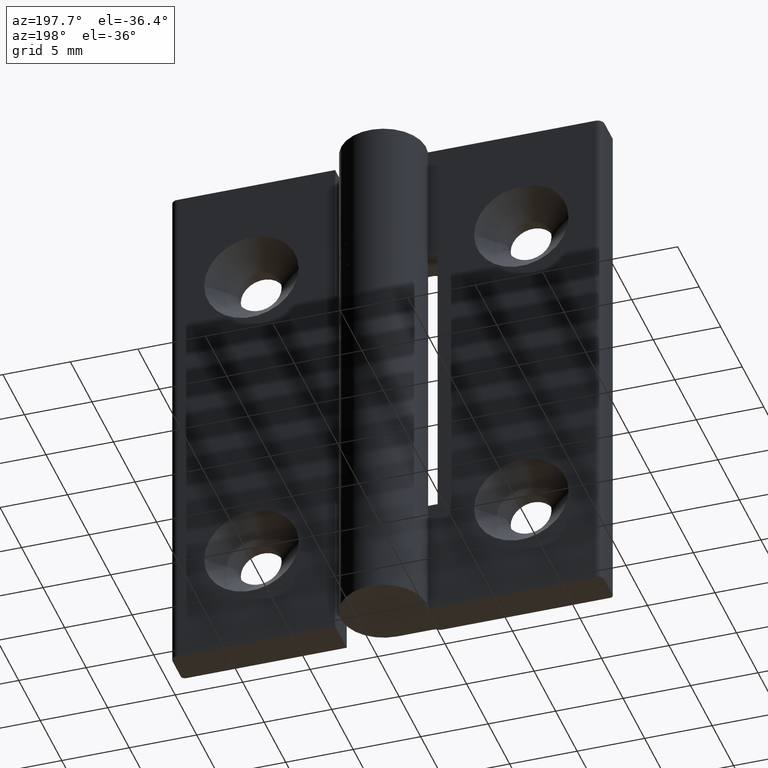
[diagram: clean part render]
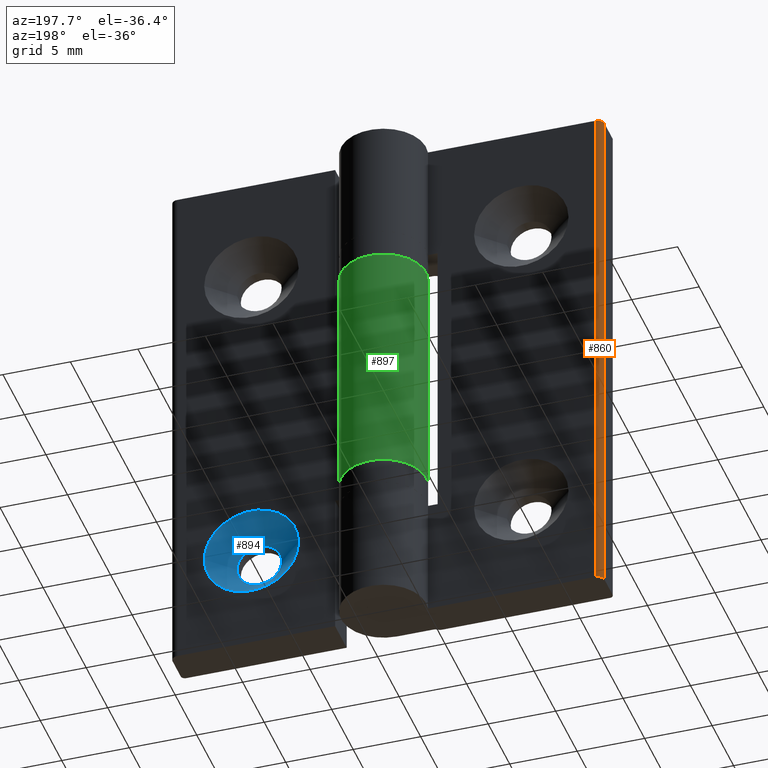
[diagram: same view with three faces highlighted in distinct colors, each labeled with its STEP entity id]
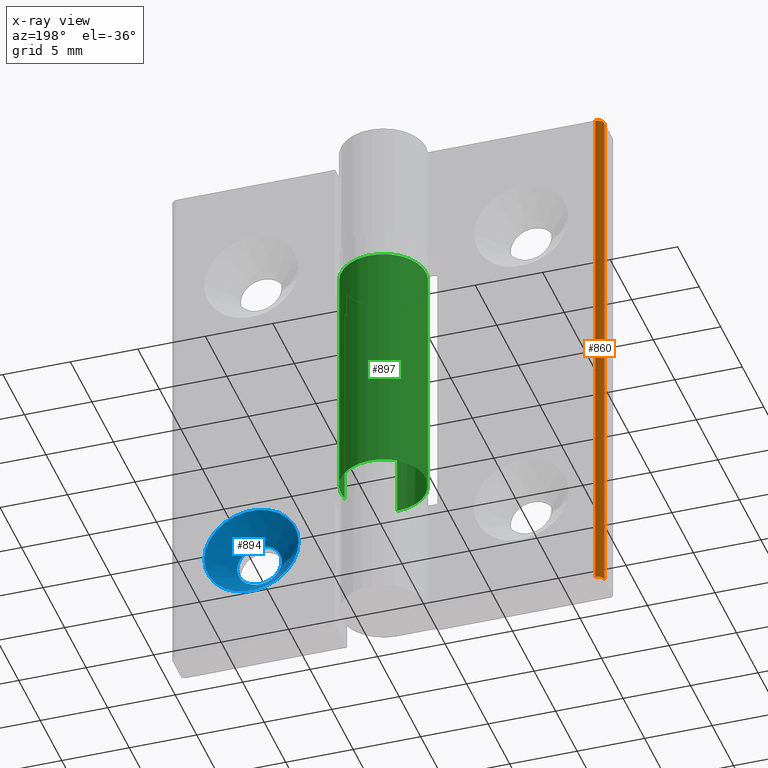
[diagram: x-ray of the same camera — body ghosted, the three highlighted faces saturated]
A machine part, auxiliary view with three faces highlighted in distinct colors.
The next image is the same camera in x-ray (body ghosted, the three faces saturated) — at least one of them is partly hidden behind the body in this view.
Their STEP definitions:

[orange] entity #860 — the highlighted cylindrical surface (edge-blend (fillet) strip) has radius 0.5 mm, axis along (0, 0, -1).
#57=CYLINDRICAL_SURFACE('',#934,0.5);
#121=CIRCLE('',#932,0.5);
#122=CIRCLE('',#935,0.5);
#167=FACE_OUTER_BOUND('',#224,.T.);
#224=EDGE_LOOP('',(#671,#672,#673,#674));
#298=LINE('',#1340,#359);
#312=LINE('',#1388,#373);
#359=VECTOR('',#1051,40.);
#373=VECTOR('',#1103,40.);
#425=VERTEX_POINT('',#1337);
#426=VERTEX_POINT('',#1339);
#440=VERTEX_POINT('',#1381);
#441=VERTEX_POINT('',#1386);
#510=EDGE_CURVE('',#426,#425,#298,.T.);
#531=EDGE_CURVE('',#425,#440,#121,.T.);
#534=EDGE_CURVE('',#440,#441,#312,.T.);
#535=EDGE_CURVE('',#441,#426,#122,.T.);
#671=ORIENTED_EDGE('',*,*,#531,.T.);
#672=ORIENTED_EDGE('',*,*,#534,.T.);
#673=ORIENTED_EDGE('',*,*,#535,.T.);
#674=ORIENTED_EDGE('',*,*,#510,.T.);
#860=ADVANCED_FACE('',(#167),#57,.T.);
#932=AXIS2_PLACEMENT_3D('',#1383,#1097,#1098);
#934=AXIS2_PLACEMENT_3D('',#1389,#1104,#1105);
#935=AXIS2_PLACEMENT_3D('',#1390,#1106,#1107);
#1051=DIRECTION('',(0.,0.,-1.));
#1097=DIRECTION('center_axis',(0.,0.,1.));
#1098=DIRECTION('ref_axis',(-0.707106781186546,0.707106781186549,0.));
#1103=DIRECTION('',(0.,0.,1.));
#1104=DIRECTION('center_axis',(0.,0.,-1.));
#1105=DIRECTION('ref_axis',(-0.707106781186546,0.707106781186549,0.));
#1106=DIRECTION('center_axis',(0.,0.,-1.));
#1107=DIRECTION('ref_axis',(-0.707106781186546,0.707106781186549,0.));
#1337=CARTESIAN_POINT('',(-15.5,2.7,-40.));
#1339=CARTESIAN_POINT('',(-15.5,2.7,0.));
#1340=CARTESIAN_POINT('',(-15.5,2.7,0.));
#1381=CARTESIAN_POINT('',(-16.,2.2,-40.));
#1383=CARTESIAN_POINT('Origin',(-15.5,2.2,-40.));
#1386=CARTESIAN_POINT('',(-16.,2.2,0.));
#1388=CARTESIAN_POINT('',(-16.,2.2,0.));
#1389=CARTESIAN_POINT('Origin',(-15.5,2.2,0.));
#1390=CARTESIAN_POINT('Origin',(-15.5,2.2,0.));

[blue] entity #894 — the highlighted conical surface has half-angle 45 deg.
#50=CONICAL_SURFACE('',#1002,2.575,45.);
#101=FACE_BOUND('',#280,.T.);
#150=CIRCLE('',#997,3.5);
#153=CIRCLE('',#1003,1.65);
#201=FACE_OUTER_BOUND('',#279,.T.);
#279=EDGE_LOOP('',(#813));
#280=EDGE_LOOP('',(#814));
#486=VERTEX_POINT('',#1530);
#489=VERTEX_POINT('',#1539);
#597=EDGE_CURVE('',#486,#486,#150,.T.);
#600=EDGE_CURVE('',#489,#489,#153,.T.);
#813=ORIENTED_EDGE('',*,*,#597,.F.);
#814=ORIENTED_EDGE('',*,*,#600,.F.);
#894=ADVANCED_FACE('',(#201,#101),#50,.F.);
#997=AXIS2_PLACEMENT_3D('',#1531,#1264,#1265);
#1002=AXIS2_PLACEMENT_3D('',#1538,#1274,#1275);
#1003=AXIS2_PLACEMENT_3D('',#1540,#1276,#1277);
#1264=DIRECTION('center_axis',(0.,-1.,0.));
#1265=DIRECTION('ref_axis',(1.,0.,0.));
#1274=DIRECTION('center_axis',(0.,1.,0.));
#1275=DIRECTION('ref_axis',(1.,0.,0.));
#1276=DIRECTION('center_axis',(0.,1.,0.));
#1277=DIRECTION('ref_axis',(1.,0.,0.));
#1530=CARTESIAN_POINT('',(13.5,-0.649999999999999,-32.));
#1531=CARTESIAN_POINT('Origin',(10.,-0.649999999999999,-32.));
#1538=CARTESIAN_POINT('Origin',(10.,-1.575,-32.));
#1539=CARTESIAN_POINT('',(11.65,-2.5,-32.));
#1540=CARTESIAN_POINT('Origin',(10.,-2.5,-32.));

[green] entity #897 — the highlighted cylindrical surface (partial cylindrical patch) has radius 3.15 mm, axis along (0, 0, -1).
#73=CYLINDRICAL_SURFACE('',#1006,3.15);
#138=CIRCLE('',#972,3.15);
#140=CIRCLE('',#977,3.15);
#204=FACE_OUTER_BOUND('',#285,.T.);
#285=EDGE_LOOP('',(#819,#820,#821,#822));
#333=LINE('',#1491,#394);
#346=LINE('',#1529,#407);
#394=VECTOR('',#1220,18.);
#407=VECTOR('',#1263,18.);
#457=VERTEX_POINT('',#1445);
#462=VERTEX_POINT('',#1455);
#470=VERTEX_POINT('',#1476);
#471=VERTEX_POINT('',#1478);
#560=EDGE_CURVE('',#457,#462,#138,.T.);
#570=EDGE_CURVE('',#471,#470,#140,.T.);
#577=EDGE_CURVE('',#462,#471,#333,.T.);
#596=EDGE_CURVE('',#470,#457,#346,.T.);
#819=ORIENTED_EDGE('',*,*,#560,.T.);
#820=ORIENTED_EDGE('',*,*,#577,.T.);
#821=ORIENTED_EDGE('',*,*,#570,.T.);
#822=ORIENTED_EDGE('',*,*,#596,.T.);
#897=ADVANCED_FACE('',(#204),#73,.T.);
#972=AXIS2_PLACEMENT_3D('',#1457,#1189,#1190);
#977=AXIS2_PLACEMENT_3D('',#1479,#1207,#1208);
#1006=AXIS2_PLACEMENT_3D('',#1543,#1282,#1283);
#1189=DIRECTION('center_axis',(0.,0.,1.));
#1190=DIRECTION('ref_axis',(-1.,0.,0.));
#1207=DIRECTION('center_axis',(-5.39388216233736E-16,0.,-1.));
#1208=DIRECTION('ref_axis',(-1.,0.,0.));
#1220=DIRECTION('',(0.,0.,1.));
#1263=DIRECTION('',(0.,0.,-1.));
#1282=DIRECTION('center_axis',(0.,0.,-1.));
#1283=DIRECTION('ref_axis',(-1.,0.,0.));
#1445=CARTESIAN_POINT('',(3.08220700148449,-0.649999999999999,-29.));
#1455=CARTESIAN_POINT('',(-4.11193712824135E-17,-3.15,-29.));
#1457=CARTESIAN_POINT('Origin',(0.,0.,-29.));
#1476=CARTESIAN_POINT('',(3.08220700148449,-0.649999999999999,-11.));
#1478=CARTESIAN_POINT('',(-4.11193712824135E-17,-3.15,-11.));
#1479=CARTESIAN_POINT('Origin',(0.,0.,-11.));
#1491=CARTESIAN_POINT('',(-4.11193712824135E-17,-3.15,0.));
#1529=CARTESIAN_POINT('',(3.08220700148449,-0.649999999999999,0.));
#1543=CARTESIAN_POINT('Origin',(0.,0.,0.));